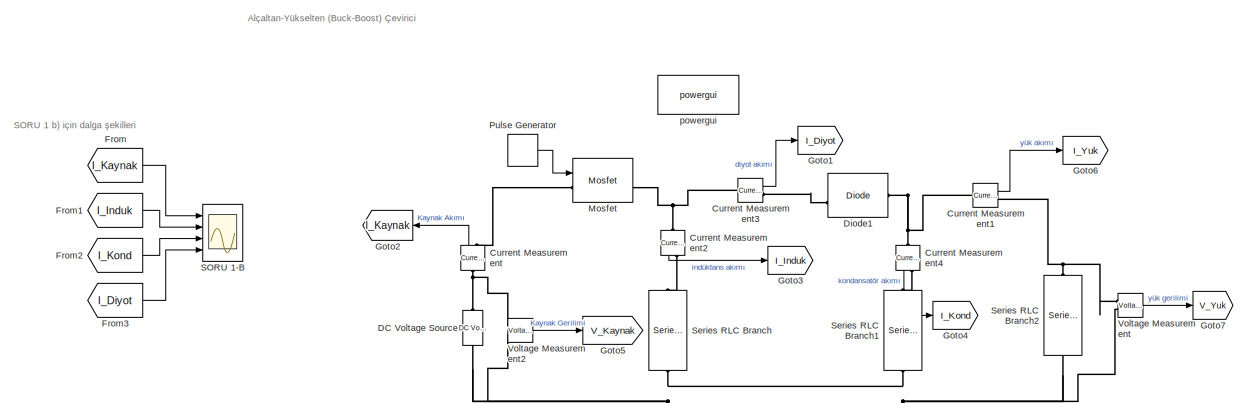
[diagram: root canvas - part 1/2, most of the canvas]
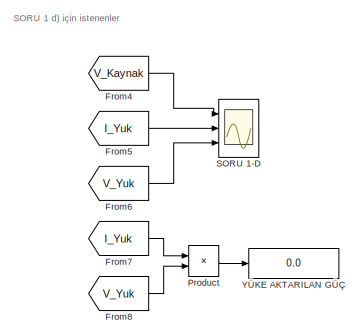
[diagram: root canvas - part 2/2, right side, full height]
MODEL slx_084a2c3667fc
KIND model
CONFIG AbsTol = auto
CONFIG EnableMultiTasking = off
CONFIG FixedStep = auto
CONFIG MaxStep = auto
CONFIG MinStep = auto
CONFIG RelTol = 1e-3
CONFIG SampleTimeConstraint = Unconstrained
CONFIG Solver = VariableStepAuto
CONFIG SolverName = VariableStepAuto
CONFIG StartTime = 0.0
CONFIG StopTime = 0.07
BLOCK [Reference] Current Measurement  REF=powerlib/Measurements/Current Measurement
  NameLocation = right
  Ports = [0, 1, 0, 0, 0, 1, 1]
  SourceBlock = powerlib/Measurements/Current Measurement
  SourceType = Current Measurement
  UserDataPersistent = on
BLOCK [Reference] Current Measurement1  REF=powerlib/Measurements/Current Measurement
  Ports = [0, 1, 0, 0, 0, 1, 1]
  SourceBlock = powerlib/Measurements/Current Measurement
  SourceType = Current Measurement
  UserDataPersistent = on
BLOCK [Reference] Current Measurement2  REF=powerlib/Measurements/Current Measurement
  NameLocation = left
  Ports = [0, 1, 0, 0, 0, 1, 1]
  SourceBlock = powerlib/Measurements/Current Measurement
  SourceType = Current Measurement
  UserDataPersistent = on
BLOCK [Reference] Current Measurement3  REF=powerlib/Measurements/Current Measurement
  Ports = [0, 1, 0, 0, 0, 1, 1]
  SourceBlock = powerlib/Measurements/Current Measurement
  SourceType = Current Measurement
  UserDataPersistent = on
BLOCK [Reference] Current Measurement4  REF=powerlib/Measurements/Current Measurement
  NameLocation = left
  Ports = [0, 1, 0, 0, 0, 1, 1]
  SourceBlock = powerlib/Measurements/Current Measurement
  SourceType = Current Measurement
  UserDataPersistent = on
BLOCK [Reference] DC Voltage Source  REF=powerlib/Electrical Sources/DC Voltage Source
  Ports = [0, 0, 0, 0, 0, 1, 1]
  SourceBlock = powerlib/Electrical Sources/DC Voltage Source
  SourceType = DC Voltage Source
BLOCK [Reference] Diode1  REF=powerlib/Power Electronics/Diode
  Ports = [0, 1, 0, 0, 0, 1, 1]
  SourceBlock = powerlib/Power Electronics/Diode
  SourceType = Diode
BLOCK [From] From
  GotoTag = I_Kaynak
BLOCK [From] From1
  GotoTag = I_Induk
BLOCK [From] From2
  GotoTag = I_Kond
BLOCK [From] From3
  GotoTag = I_Diyot
BLOCK [From] From4
  GotoTag = V_Kaynak
BLOCK [From] From5
  GotoTag = I_Yuk
BLOCK [From] From6
  GotoTag = V_Yuk
BLOCK [From] From7
  GotoTag = I_Yuk
BLOCK [From] From8
  GotoTag = V_Yuk
BLOCK [Goto] Goto1
  GotoTag = I_Diyot
BLOCK [Goto] Goto2
  GotoTag = I_Kaynak
BLOCK [Goto] Goto3
  GotoTag = I_Induk
BLOCK [Goto] Goto4
  GotoTag = I_Kond
BLOCK [Goto] Goto5
  GotoTag = V_Kaynak
BLOCK [Goto] Goto6
  GotoTag = I_Yuk
BLOCK [Goto] Goto7
  GotoTag = V_Yuk
BLOCK [Reference] Mosfet  REF=powerlib/Power Electronics/Mosfet
  Ports = [1, 1, 0, 0, 0, 1, 1]
  SourceBlock = powerlib/Power Electronics/Mosfet
  SourceType = Mosfet
BLOCK [Product] Product
  Ports = [2, 1]
BLOCK [DiscretePulseGenerator] Pulse Generator
  Period = 1/40000
  Ports = [0, 1]
  PulseType = Time based
  PulseWidth = 25
BLOCK [Scope] SORU 1-B
  Floating = off
  NumInputPorts = 4
  Ports = [4]
  ScopeSpecificationString = Simulink.scopes.TimeScopeBlockCfg('CurrentConfiguration', extmgr.ConfigurationSet(extmgr.Configuration('Core','General UI',true,'FigureColor',[0.937254901960784 0.866666666666667 0.866666666666667]),extmgr.Configuration('Core','Source UI',true),extmgr.Configuration('Sources','WiredSimulink',true),extmgr.Configuration('Visuals','Time Domain',true,'SerializedDisplays',{struct('MinYLimReal','-0.52553...<+4160ch>
BLOCK [Scope] SORU 1-D
  Floating = off
  NumInputPorts = 3
  Ports = [3]
  ScopeSpecificationString = Simulink.scopes.TimeScopeBlockCfg('CurrentConfiguration', extmgr.ConfigurationSet(extmgr.Configuration('Core','General UI',true,'FigureColor',[0.952941176470588 0.870588235294118 0.733333333333333]),extmgr.Configuration('Core','Source UI',true),extmgr.Configuration('Sources','WiredSimulink',true,'DataLoggingVariableName','ScopeData1'),extmgr.Configuration('Visuals','Time Domain',true,'SerializedDi...<+2089ch>
BLOCK [Reference] Series RLC Branch  REF=powerlib/Elements/Series RLC Branch
  NameLocation = left
  Ports = [0, 0, 0, 0, 0, 1, 1]
  SourceBlock = powerlib/Elements/Series RLC Branch
  SourceType = Series RLC Branch
BLOCK [Reference] Series RLC Branch1  REF=powerlib/Elements/Series RLC Branch
  NameLocation = left
  Ports = [0, 0, 0, 0, 0, 1, 1]
  SourceBlock = powerlib/Elements/Series RLC Branch
  SourceType = Series RLC Branch
BLOCK [Reference] Series RLC Branch2  REF=powerlib/Elements/Series RLC Branch
  NameLocation = left
  Ports = [0, 0, 0, 0, 0, 1, 1]
  SourceBlock = powerlib/Elements/Series RLC Branch
  SourceType = Series RLC Branch
BLOCK [Reference] Voltage Measurement  REF=powerlib/Measurements/Voltage Measurement
  Ports = [0, 1, 0, 0, 0, 2]
  SourceBlock = powerlib/Measurements/Voltage Measurement
  SourceType = Voltage Measurement
  UserDataPersistent = on
BLOCK [Reference] Voltage Measurement2  REF=powerlib/Measurements/Voltage Measurement
  Ports = [0, 1, 0, 0, 0, 2]
  SourceBlock = powerlib/Measurements/Voltage Measurement
  SourceType = Voltage Measurement
  UserDataPersistent = on
BLOCK [Display] YÜKE AKTARILAN GÜÇ
  Decimation = 1
  Ports = [1]
BLOCK [Reference] powergui  REF=powerlib/powergui
  Ports = []
  Priority = 1
  SourceBlock = powerlib/powergui
  SourceType = PSB option menu block
ANNOTATION (root): Alçaltan-Yükselten (Buck-Boost) Çevirici
ANNOTATION (root): SORU 1 b) için dalga şekilleri
ANNOTATION (root): SORU 1 d) için istenenler
LINE Current Measurement1:1 -> Goto6:1
LINE Current Measurement2:1 -> Goto3:1
LINE Current Measurement3:1 -> Goto1:1
LINE Current Measurement4:1 -> Goto4:1
LINE Current Measurement:1 -> Goto2:1
LINE From1:1 -> SORU 1-B:2
LINE From2:1 -> SORU 1-B:3
LINE From3:1 -> SORU 1-B:4
LINE From4:1 -> SORU 1-D:1
LINE From5:1 -> SORU 1-D:2
LINE From6:1 -> SORU 1-D:3
LINE From7:1 -> Product:1
LINE From8:1 -> Product:2
LINE From:1 -> SORU 1-B:1
LINE Product:1 -> YÜKE AKTARILAN GÜÇ:1
LINE Pulse Generator:1 -> Mosfet:1
LINE Voltage Measurement2:1 -> Goto5:1
LINE Voltage Measurement:1 -> Goto7:1
PNET net1: Current Measurement1:LConn1 -- Current Measurement4:LConn1 -- Diode1:LConn1
PNET net2: Current Measurement1:RConn1 -- Series RLC Branch2:LConn1 -- Voltage Measurement:LConn1
PNET net3: Current Measurement2:LConn1 -- Current Measurement3:LConn1 -- Mosfet:RConn1
PLINE Current Measurement2:RConn1 -- Series RLC Branch:LConn1
PLINE Current Measurement3:RConn1 -- Diode1:RConn1
PLINE Current Measurement4:RConn1 -- Series RLC Branch1:LConn1
PNET net4: Current Measurement:LConn1 -- DC Voltage Source:RConn1 -- Voltage Measurement2:LConn1
PLINE Current Measurement:RConn1 -- Mosfet:LConn1
PNET net5: DC Voltage Source:LConn1 -- Series RLC Branch1:RConn1 -- Series RLC Branch2:RConn1 -- Series RLC Branch:RConn1 -- Voltage Measurement2:LConn2 -- Voltage Measurement:LConn2
note: PNET lines group multi-terminal physical nets as a canonical sorted terminal list (undirected conserving connections); 2-terminal nets keep the pairwise PLINE form
